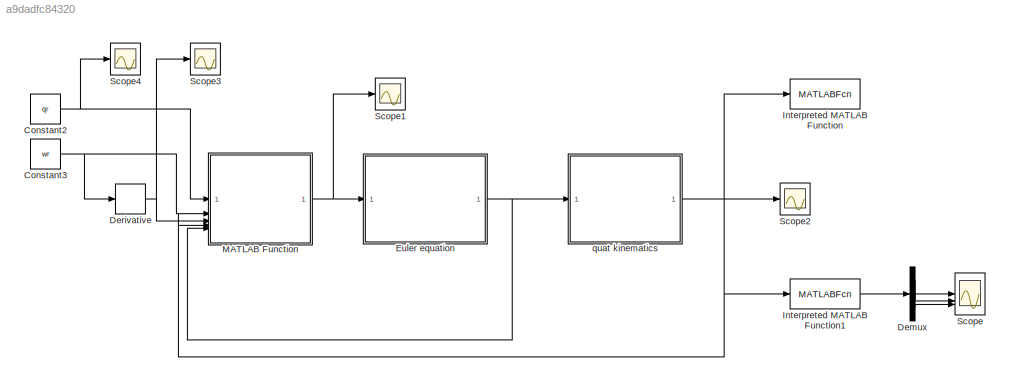
MODEL slx_a9dadfc84320
KIND model
CONFIG AbsTol = auto
CONFIG EnableMultiTasking = on
CONFIG FixedStep = auto
CONFIG MaxStep = auto
CONFIG MinStep = auto
CONFIG RelTol = 1e-3
CONFIG SampleTimeConstraint = Unconstrained
CONFIG SolverName = ode23
CONFIG StartTime = 0.0
CONFIG StopTime = Tfin
BLOCK [Constant] Constant2
  Value = qr
BLOCK [Constant] Constant3
  Value = wr
BLOCK [Demux] Demux
  Outputs = 3
BLOCK [Derivative] Derivative
  CoefficientInTFapproximation = 50
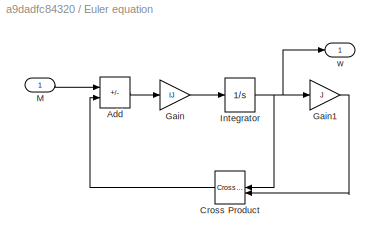
BLOCK [SubSystem] Euler equation
BLOCK [Sum] Euler equation/Add
  IconShape = rectangular
  Inputs = +-
BLOCK [Reference] Euler equation/Cross Product  REF=vrlib/Utilities/Cross Product
  NameLocation = top
  SourceBlock = vrlib/Utilities/Cross Product
  SourceType = Cross Product
BLOCK [Gain] Euler equation/Gain
  Gain = IJ
  Multiplication = Matrix(K*u)
BLOCK [Gain] Euler equation/Gain1
  Gain = J
  Multiplication = Matrix(K*u)
BLOCK [Integrator] Euler equation/Integrator
  InitialCondition = w0
BLOCK [Inport] Euler equation/M
BLOCK [Outport] Euler equation/w
  VectorParamsAs1DForOutWhenUnconnected = off
BLOCK [MATLABFcn] Interpreted MATLAB Function
  MATLABFcn = animation_rot(hr,u)
  OutputDimensions = 0
BLOCK [MATLABFcn] Interpreted MATLAB Function1
  MATLABFcn = qua2euler(u)
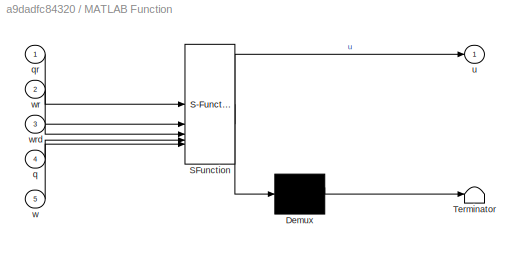
BLOCK [SubSystem] MATLAB Function
  ErrorFcn = Stateflow.Translate.translate
  PermitHierarchicalResolution = ExplicitOnly
  SFBlockType = MATLAB Function
  TreatAsAtomicUnit = on
BLOCK [Demux] MATLAB Function/ Demux 
  Outputs = 1
BLOCK [S-Function] MATLAB Function/ SFunction 
  EnableBusSupport = off
  FunctionName = sf_sfun
  PortCounts = [5 2]
  SFcnIsStateOwnerBlock = off
  SFunctionDeploymentMode = off
  Tag = Stateflow S-Function 2
BLOCK [Terminator] MATLAB Function/ Terminator 
BLOCK [Inport] MATLAB Function/q
  Port = 4
BLOCK [Inport] MATLAB Function/qr
BLOCK [Outport] MATLAB Function/u
  VectorParamsAs1DForOutWhenUnconnected = off
BLOCK [Inport] MATLAB Function/w
  Port = 5
BLOCK [Inport] MATLAB Function/wr
  Port = 2
BLOCK [Inport] MATLAB Function/wrd
  Port = 3
BLOCK [Scope] Scope
  Floating = off
  NumInputPorts = 3
  ScopeSpecificationString = Simulink.scopes.TimeScopeBlockCfg('CurrentConfiguration', extmgr.ConfigurationSet(extmgr.Configuration('Core','General UI',true),extmgr.Configuration('Core','Source UI',true),extmgr.Configuration('Sources','WiredSimulink',true),extmgr.Configuration('Visuals','Time Domain',true,'SerializedDisplays',{struct('MinYLimReal','-1.00000','MaxYLimReal','1.00000','YLabelReal','','MinYLimMag','0.00000','MaxY...<+2650ch>
BLOCK [Scope] Scope1
  Floating = off
  NumInputPorts = 1
  ScopeSpecificationString = Simulink.scopes.TimeScopeBlockCfg('CurrentConfiguration', extmgr.ConfigurationSet(extmgr.Configuration('Core','General UI',true),extmgr.Configuration('Core','Source UI',true),extmgr.Configuration('Sources','WiredSimulink',true,'DataLoggingVariableName','ScopeData1'),extmgr.Configuration('Visuals','Time Domain',true,'SerializedDisplays',{struct('MinYLimReal','-1.89203','MaxYLimReal','5.32834','YLab...<+1441ch>
BLOCK [Scope] Scope2
  Floating = off
  NumInputPorts = 1
  ScopeSpecificationString = Simulink.scopes.TimeScopeBlockCfg('CurrentConfiguration', extmgr.ConfigurationSet(extmgr.Configuration('Core','General UI',true),extmgr.Configuration('Core','Source UI',true),extmgr.Configuration('Sources','WiredSimulink',true,'DataLoggingVariableName','ScopeData1'),extmgr.Configuration('Visuals','Time Domain',true,'SerializedDisplays',{struct('MinYLimReal','-1.24996','MaxYLimReal','1.24962','YLab...<+1509ch>
BLOCK [Scope] Scope3
  Floating = off
  NumInputPorts = 1
  ScopeSpecificationString = Simulink.scopes.TimeScopeBlockCfg('CurrentConfiguration', extmgr.ConfigurationSet(extmgr.Configuration('Core','General UI',true),extmgr.Configuration('Core','Source UI',true),extmgr.Configuration('Sources','WiredSimulink',true,'DataLoggingVariableName','ScopeData2'),extmgr.Configuration('Visuals','Time Domain',true,'SerializedDisplays',{struct('MinYLimReal','-1.00000','MaxYLimReal','1.00000','YLab...<+1426ch>
BLOCK [Scope] Scope4
  Floating = off
  NumInputPorts = 1
  ScopeSpecificationString = Simulink.scopes.TimeScopeBlockCfg('CurrentConfiguration', extmgr.ConfigurationSet(extmgr.Configuration('Core','General UI',true),extmgr.Configuration('Core','Source UI',true),extmgr.Configuration('Sources','WiredSimulink',true,'DataLoggingVariableName','ScopeData3'),extmgr.Configuration('Visuals','Time Domain',true,'SerializedDisplays',{struct('MinYLimReal','-0.11548','MaxYLimReal','1.03936','YLab...<+1437ch>
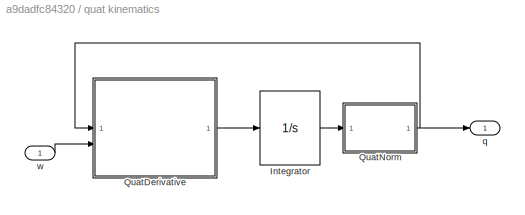
BLOCK [SubSystem] quat kinematics
  AncestorBlock = lib_rotations_2014/quat kinematics
BLOCK [Integrator] quat kinematics/Integrator
  InitialCondition = q0
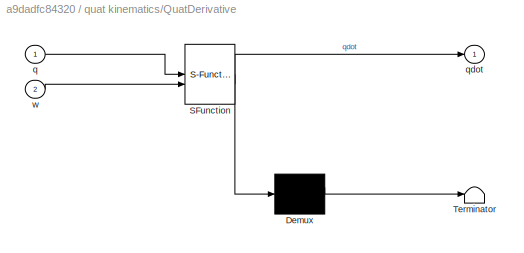
BLOCK [SubSystem] quat kinematics/QuatDerivative
  ErrorFcn = Stateflow.Translate.translate
  PermitHierarchicalResolution = ExplicitOnly
  SFBlockType = MATLAB Function
  TreatAsAtomicUnit = on
BLOCK [Demux] quat kinematics/QuatDerivative/ Demux 
  Outputs = 1
BLOCK [S-Function] quat kinematics/QuatDerivative/ SFunction 
  EnableBusSupport = off
  FunctionName = sf_sfun
  PortCounts = [2 2]
  SFcnIsStateOwnerBlock = off
  SFunctionDeploymentMode = off
  Tag = Stateflow S-Function 1
BLOCK [Terminator] quat kinematics/QuatDerivative/ Terminator 
BLOCK [Inport] quat kinematics/QuatDerivative/q
BLOCK [Outport] quat kinematics/QuatDerivative/qdot
  VectorParamsAs1DForOutWhenUnconnected = off
BLOCK [Inport] quat kinematics/QuatDerivative/w
  Port = 2
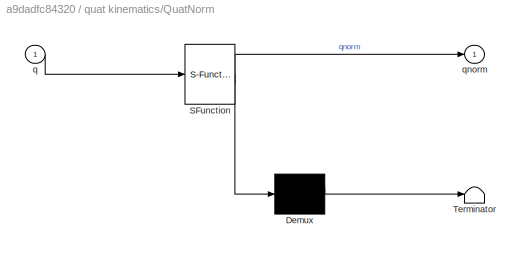
BLOCK [SubSystem] quat kinematics/QuatNorm
  ErrorFcn = Stateflow.Translate.translate
  PermitHierarchicalResolution = ExplicitOnly
  SFBlockType = MATLAB Function
  TreatAsAtomicUnit = on
BLOCK [Demux] quat kinematics/QuatNorm/ Demux 
  Outputs = 1
BLOCK [S-Function] quat kinematics/QuatNorm/ SFunction 
  EnableBusSupport = off
  FunctionName = sf_sfun
  PortCounts = [1 2]
  SFcnIsStateOwnerBlock = off
  SFunctionDeploymentMode = off
  Tag = Stateflow S-Function 3
BLOCK [Terminator] quat kinematics/QuatNorm/ Terminator 
BLOCK [Inport] quat kinematics/QuatNorm/q
BLOCK [Outport] quat kinematics/QuatNorm/qnorm
  VectorParamsAs1DForOutWhenUnconnected = off
BLOCK [Outport] quat kinematics/q
  PortDimensions = 4
  VectorParamsAs1DForOutWhenUnconnected = off
BLOCK [Inport] quat kinematics/w
  PortDimensions = 3
NET Constant2:1 -> MATLAB Function:1, Scope4:1
NET Constant3:1 -> Derivative:1, MATLAB Function:2
LINE Demux:1 -> Scope:1
LINE Demux:2 -> Scope:2
LINE Demux:3 -> Scope:3
NET Derivative:1 -> MATLAB Function:3, Scope3:1
LINE Euler equation/Add:1 -> Euler equation/Gain:1
LINE Euler equation/Cross Product:1 -> Euler equation/Add:2
LINE Euler equation/Gain1:1 -> Euler equation/Cross Product:2
LINE Euler equation/Gain:1 -> Euler equation/Integrator:1
NET Euler equation/Integrator:1 -> Euler equation/Cross Product:1, Euler equation/Gain1:1, Euler equation/w:1
LINE Euler equation/M:1 -> Euler equation/Add:1
NET Euler equation:1 -> MATLAB Function:5, quat kinematics:1
LINE Interpreted MATLAB Function1:1 -> Demux:1
NET MATLAB Function:1 -> Euler equation:1, Scope1:1
NET quat kinematics:1 -> Interpreted MATLAB Function1:1, Interpreted MATLAB Function:1, MATLAB Function:4, Scope2:1
note: NET lines group one-source signal fan-out (src -> all destinations, sorted); 1:1 wires keep LINE
CHART quat kinematics/QuatDerivative states=1 transitions=1
  STATE_LABEL 'eML_blk_kernel()'
  STATE_LABEL 'SCRIPT:\nfunction qdot= QuatDerivative(q,w)\n%#codegen\nomegaq=[0; w];\nQ=[q(1) -q(2) -q(3) -q(4);\n    q(2) q(1) -q(4) q(3);\n    q(3) q(4) q(1) -q(2);\n    q(4) -q(3) q(2) q(1)];\nqdot=Q*omegaq/2;\n'
CHART MATLAB Function states=1 transitions=1
  STATE_LABEL 'eML_blk_kernel()'
  STATE_LABEL 'SCRIPT:\nfunction u = ctrl_track(qr,wr,wrd,q,w)\n%#codegen\n\nJ=diag([10 9 12]*1e3);\n\nu=zeros(3,1);\n\nqs=[q(1);-q(2:4)];\ndq=quatprod(qs,qr);\ndw=wr-w;\n\n% Proportional-Derivative controller\n% kp=2;\n% kd=200;\n% u=kp*dq(2:4)+kd*dw;\n% %u=kp*sign(dq(1))*dq(2:4)+kd*dw;\n\n% Sliding Mode Control - version 1\nk2=0.1;\nk1=50;\nus=J*(wrd+k2/2*(dq(1)*dw+crossprod(dq(2:4),wr+w)))+crossprod(w,J*w);\ns=dw+k2*dq(2:4);\nu=us+...<+209ch>'
CHART quat kinematics/QuatNorm states=1 transitions=1
  STATE_LABEL 'eML_blk_kernel()'
  STATE_LABEL "SCRIPT:\nfunction qnorm = QuatNorm(q)\n%#codegen\nqnorm=zeros(4,1);\nq2=sqrt(q'*q);\nqnorm=q/q2;\n"
CHART  states=0 transitions=0
CHART  states=0 transitions=0
CHART  states=0 transitions=0
